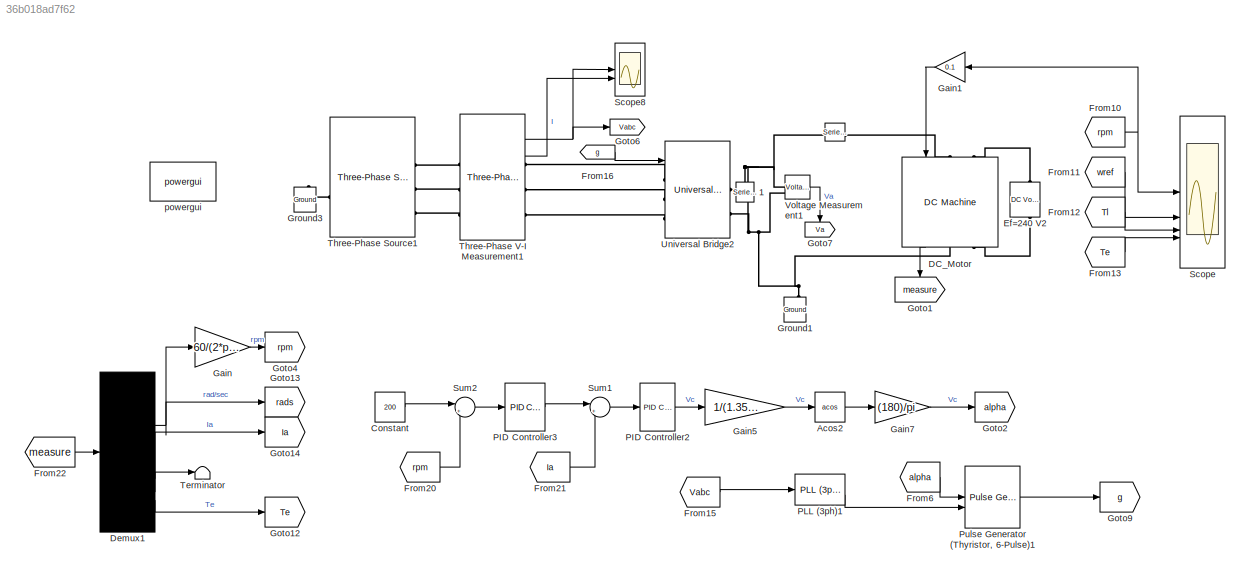
MODEL slx_36b018ad7f62
KIND model
CONFIG AbsTol = auto
CONFIG EnableMultiTasking = off
CONFIG FixedStep = auto
CONFIG MaxStep = 0.00001
CONFIG MinStep = auto
CONFIG RelTol = 1e-3
CONFIG SampleTimeConstraint = Unconstrained
CONFIG SolverName = VariableStepAuto
CONFIG StartTime = 0.0
CONFIG StopTime = 1
BLOCK [Reference]      REF=spsSeriesRLCBranchLib/Series RLC Branch
  LibrarySourceBlock = sps_lib/Passives/Series RLC Branch
  SourceBlock = spsSeriesRLCBranchLib/Series RLC Branch
  SourceType = Series RLC Branch
BLOCK [Reference]    1  REF=spsSeriesRLCBranchLib/Series RLC Branch
  LibrarySourceBlock = sps_lib/Passives/Series RLC Branch
  NameLocation = left
  SourceBlock = spsSeriesRLCBranchLib/Series RLC Branch
  SourceType = Series RLC Branch
BLOCK [Trigonometry] Acos2
  Operator = acos
BLOCK [Constant] Constant
  Value = 200
BLOCK [Reference] DC_Motor   REF=spsDCMachineLib/DC Machine
  AttributesFormatString = \n
  LibrarySourceBlock = sps_lib/Electrical Machines/DC Machine
  NameLocation = left
  SourceBlock = spsDCMachineLib/DC Machine
  SourceType = DC machine
BLOCK [Demux] Demux1
  DisplayOption = none
BLOCK [Reference] Ef=240 V2  REF=spsDCVoltageSourceLib/DC Voltage Source
  AttributesFormatString = \n
  Description = source block
  LibrarySourceBlock = sps_lib/Sources/DC Voltage Source
  NameLocation = left
  SourceBlock = spsDCVoltageSourceLib/DC Voltage Source
  SourceType = DC Voltage Source
BLOCK [From] From10
  GotoTag = rpm
BLOCK [From] From11
  GotoTag = wref
BLOCK [From] From12
  GotoTag = Tl
BLOCK [From] From13
  GotoTag = Te
BLOCK [From] From15
  GotoTag = Vabc
BLOCK [From] From16
  GotoTag = g
BLOCK [From] From20
  GotoTag = rpm
BLOCK [From] From21
  GotoTag = Ia
BLOCK [From] From22
  GotoTag = measure
  NameLocation = top
BLOCK [From] From6
  GotoTag = alpha
BLOCK [Gain] Gain
  Gain = 60/(2*pi)
BLOCK [Gain] Gain1
  Gain = 0.1
  NameLocation = top
BLOCK [Gain] Gain5
  Gain = 1/(1.35*230)
BLOCK [Gain] Gain7
  Gain = (180)/pi
BLOCK [Goto] Goto1
  GotoTag = measure
  NameLocation = left
BLOCK [Goto] Goto12
  GotoTag = Te
BLOCK [Goto] Goto13
  GotoTag = rads
BLOCK [Goto] Goto14
  GotoTag = Ia
BLOCK [Goto] Goto2
  GotoTag = alpha
BLOCK [Goto] Goto4
  GotoTag = rpm
BLOCK [Goto] Goto6
  GotoTag = Vabc
BLOCK [Goto] Goto7
  GotoTag = Va
  NameLocation = left
BLOCK [Goto] Goto9
  GotoTag = g
BLOCK [Reference] Ground1  REF=spsGroundLib/Ground
  LibrarySourceBlock = sps_lib/Utilities/Ground
  NameLocation = right
  SourceBlock = spsGroundLib/Ground
  SourceType = Ground
BLOCK [Reference] Ground3  REF=spsGroundLib/Ground
  LibrarySourceBlock = sps_lib/Utilities/Ground
  NameLocation = right
  SourceBlock = spsGroundLib/Ground
  SourceType = Ground
BLOCK [Reference] PID Controller2  REF=slpidlib/PID Controller
  SourceBlock = slpidlib/PID Controller
  SourceType = PID 1dof
BLOCK [Reference] PID Controller3  REF=slpidlib/PID Controller
  SourceBlock = slpidlib/PID Controller
  SourceType = PID 1dof
BLOCK [Reference] PLL (3ph)1  REF=spsPLL3phLib/PLL
(3ph)
  LibrarySourceBlock = sps_lib/Control/PLL\n(3ph)
  SourceBlock = spsPLL3phLib/PLL\n(3ph)
  SourceType = PLL (3ph)
BLOCK [Reference] Pulse Generator (Thyristor, 6-Pulse)1  REF=spsPulseGeneratorThyristor12PulseLib/Pulse Generator
(Thyristor, 12-Pulse)
  LibrarySourceBlock = sps_lib/Power Electronics/Power Electronics Control/Pulse Generator\n(Thyristor, 12-Pulse)
  SourceBlock = spsPulseGeneratorThyristor12PulseLib/Pulse Generator\n(Thyristor, 12-Pulse)
  SourceType = Pulse Generator (Thyristor)
BLOCK [Scope] Scope
  Floating = off
  NumInputPorts = 4
  ScopeSpecificationString = Simulink.scopes.TimeScopeBlockCfg('CurrentConfiguration', extmgr.ConfigurationSet(extmgr.Configuration('Core','General UI',true),extmgr.Configuration('Core','Source UI',true),extmgr.Configuration('Sources','WiredSimulink',true,'DataLoggingVariableName','ScopeData1'),extmgr.Configuration('Visuals','Time Domain',true,'SerializedDisplays',{struct('MinYLimReal','-25.03046','MaxYLimReal','225.25185','Y...<+3484ch>
BLOCK [Scope] Scope8
  Floating = off
  NumInputPorts = 2
  ScopeSpecificationString = Simulink.scopes.TimeScopeBlockCfg('CurrentConfiguration', extmgr.ConfigurationSet(extmgr.Configuration('Core','General UI',true,'FigureColor',[1 1 1]),extmgr.Configuration('Core','Source UI',true),extmgr.Configuration('Sources','WiredSimulink',true,'DataLoggingVariableName','ScopeData2'),extmgr.Configuration('Visuals','Time Domain',true,'SerializedDisplays',{struct('MinYLimReal','-406.10499','MaxY...<+2914ch>
BLOCK [Sum] Sum1
  Inputs = |+-
BLOCK [Sum] Sum2
  Inputs = |+-
BLOCK [Terminator] Terminator
BLOCK [Reference] Three-Phase Source1  REF=spsThreePhaseSourceLib/Three-Phase Source
  LibrarySourceBlock = sps_lib/Sources/Three-Phase Source
  SourceBlock = spsThreePhaseSourceLib/Three-Phase Source
  SourceType = Three-Phase Source
BLOCK [Reference] Three-Phase V-I Measurement1  REF=spsThreePhaseVIMeasurementLib/Three-Phase
V-I Measurement
  LibrarySourceBlock = sps_lib/Sensors and Measurements/Three-Phase\nV-I Measurement
  SourceBlock = spsThreePhaseVIMeasurementLib/Three-Phase\nV-I Measurement
  SourceType = Three-Phase VI Measurement
BLOCK [Reference] Universal Bridge2  REF=spsUniversalBridgeLib/Universal Bridge
  LibrarySourceBlock = sps_lib/Power Electronics/Universal Bridge
  SourceBlock = spsUniversalBridgeLib/Universal Bridge
  SourceType = Universal Bridge
BLOCK [Reference] Voltage Measurement1  REF=spsVoltageMeasurementLib/Voltage Measurement
  LibrarySourceBlock = sps_lib/Sensors and Measurements/Voltage Measurement
  SourceBlock = spsVoltageMeasurementLib/Voltage Measurement
  SourceType = Voltage Measurement
  UserDataPersistent = on
BLOCK [Reference] powergui  REF=sps_lib/powergui
  Priority = 1
  SourceBlock = sps_lib/powergui
  SourceType = PSB option menu block
LINE Acos2:1 -> Gain7:1
LINE Constant:1 -> Sum2:1
LINE DC_Motor :1 -> Goto1:1
NET Demux1:1 -> Gain:1, Goto13:1
LINE Demux1:2 -> Goto14:1
LINE Demux1:3 -> Terminator:1
LINE Demux1:4 -> Goto12:1
NET From10:1 -> Gain1:1, Scope:1
LINE From11:1 -> Scope:2
LINE From12:1 -> Scope:3
LINE From13:1 -> Scope:4
LINE From15:1 -> PLL (3ph)1:1
LINE From16:1 -> Universal Bridge2:1
LINE From20:1 -> Sum2:2
LINE From21:1 -> Sum1:2
LINE From22:1 -> Demux1:1
LINE From6:1 -> Pulse Generator (Thyristor, 6-Pulse)1:1
LINE Gain1:1 -> DC_Motor :1
LINE Gain5:1 -> Acos2:1
LINE Gain7:1 -> Goto2:1
LINE Gain:1 -> Goto4:1
LINE PID Controller2:1 -> Gain5:1
LINE PID Controller3:1 -> Sum1:1
LINE PLL (3ph)1:2 -> Pulse Generator (Thyristor, 6-Pulse)1:2
LINE Pulse Generator (Thyristor, 6-Pulse)1:1 -> Goto9:1
LINE Sum1:1 -> PID Controller2:1
LINE Sum2:1 -> PID Controller3:1
NET Three-Phase V-I Measurement1:1 -> Goto6:1, Scope8:1
LINE Three-Phase V-I Measurement1:2 -> Scope8:2
LINE Voltage Measurement1:1 -> Goto7:1
PNET net1:    1:LConn1 --    :LConn1 -- Universal Bridge2:RConn1 -- Voltage Measurement1:LConn1
PNET net2:    1:RConn1 -- DC_Motor :RConn1 -- Ground1:LConn1 -- Universal Bridge2:RConn2 -- Voltage Measurement1:LConn2
PLINE    :RConn1 -- DC_Motor :LConn1
PLINE DC_Motor :LConn2 -- Ef=240 V2:RConn1
PLINE DC_Motor :RConn2 -- Ef=240 V2:LConn1
PLINE Ground3:LConn1 -- Three-Phase Source1:LConn1
PLINE Three-Phase Source1:RConn1 -- Three-Phase V-I Measurement1:LConn1
PLINE Three-Phase Source1:RConn2 -- Three-Phase V-I Measurement1:LConn2
PLINE Three-Phase Source1:RConn3 -- Three-Phase V-I Measurement1:LConn3
PLINE Three-Phase V-I Measurement1:RConn1 -- Universal Bridge2:LConn1
PLINE Three-Phase V-I Measurement1:RConn2 -- Universal Bridge2:LConn2
PLINE Three-Phase V-I Measurement1:RConn3 -- Universal Bridge2:LConn3
note: NET lines group one-source signal fan-out (src -> all destinations, sorted); 1:1 wires keep LINE; PNET lines group multi-terminal physical nets as a canonical sorted terminal list (undirected conserving connections); 2-terminal nets keep the pairwise PLINE form
